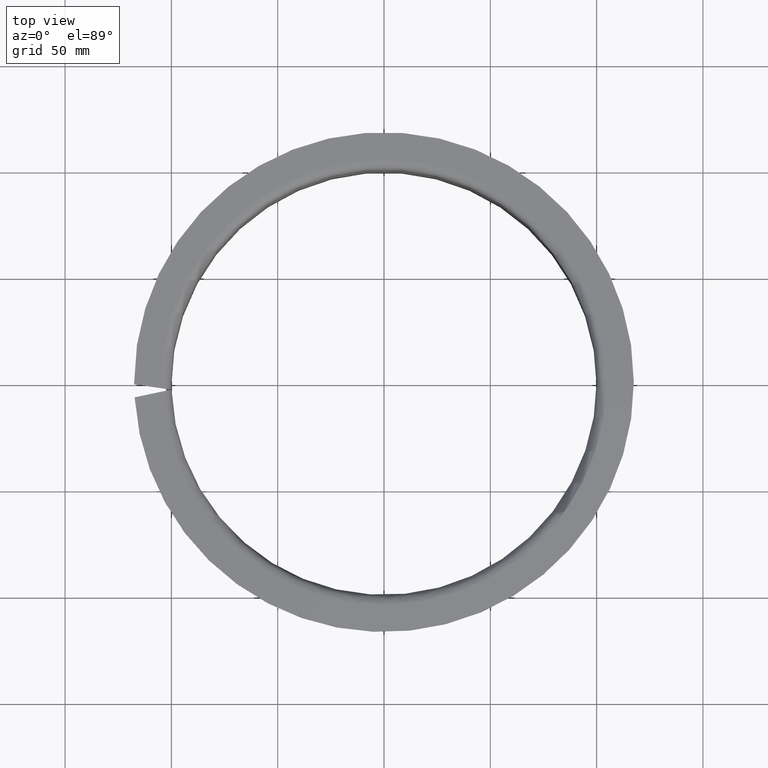
[diagram: clean part render]
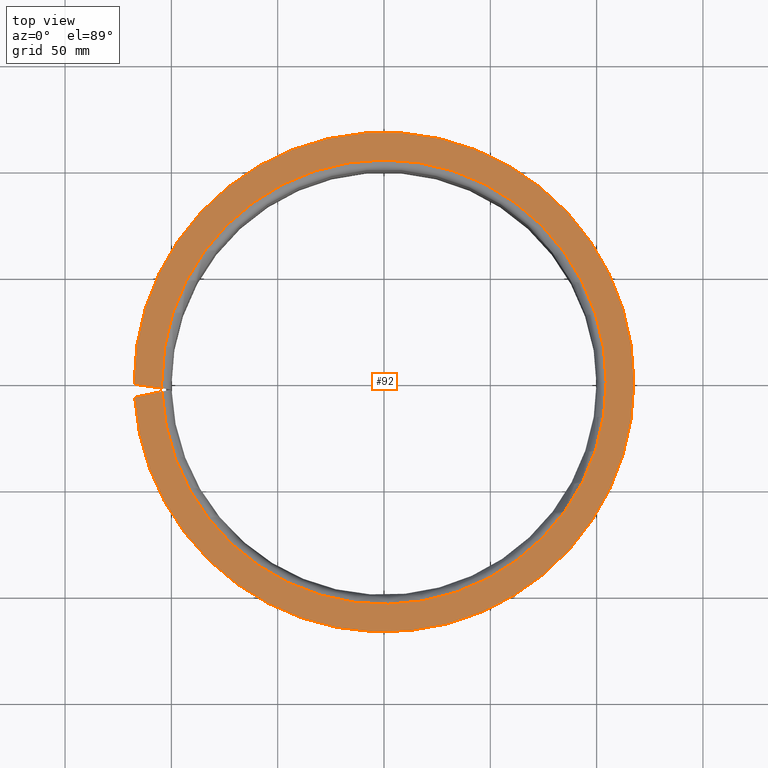
[diagram: same view with one face highlighted and labeled with its STEP entity id]
A machine part, top view. The second image highlights one B-rep face of the part: STEP entity #92.
In plain terms, the highlighted planar face has unit normal (-0, -0, 1).
Its self-contained STEP definition (entity closure, byte-faithful):
#92=ADVANCED_FACE('',(#136),#137,.T.);
#136=FACE_OUTER_BOUND('',#188,.T.);
#137=PLANE('',#189);
#188=EDGE_LOOP('',(#331,#332,#333,#334,#335,#336,#337,#338));
#189=AXIS2_PLACEMENT_3D('',#339,#340,#341);
#331=ORIENTED_EDGE('',*,*,#466,.T.);
#332=ORIENTED_EDGE('',*,*,#440,.T.);
#333=ORIENTED_EDGE('',*,*,#467,.T.);
#334=ORIENTED_EDGE('',*,*,#446,.T.);
#335=ORIENTED_EDGE('',*,*,#461,.T.);
#336=ORIENTED_EDGE('',*,*,#452,.F.);
#337=ORIENTED_EDGE('',*,*,#465,.F.);
#338=ORIENTED_EDGE('',*,*,#450,.F.);
#339=CARTESIAN_POINT('',(-111.0,2.04838146938149E-013,90.0));
#340=DIRECTION('',(-1.16269284789061E-031,-6.12323399573677E-017,1.0));
#341=DIRECTION('',(-1.0,1.89882151931499E-015,0.0));
#440=EDGE_CURVE('',#527,#524,#528,.T.);
#446=EDGE_CURVE('',#533,#537,#539,.T.);
#450=EDGE_CURVE('',#545,#541,#547,.T.);
#452=EDGE_CURVE('',#548,#551,#552,.T.);
#461=EDGE_CURVE('',#537,#551,#562,.T.);
#465=EDGE_CURVE('',#541,#548,#566,.T.);
#466=EDGE_CURVE('',#545,#527,#567,.T.);
#467=EDGE_CURVE('',#524,#533,#568,.T.);
#524=VERTEX_POINT('',#653);
#527=VERTEX_POINT('',#657);
#528=CIRCLE('',#658,117.5);
#533=VERTEX_POINT('',#664);
#537=VERTEX_POINT('',#669);
#539=CIRCLE('',#672,117.5);
#541=VERTEX_POINT('',#674);
#545=VERTEX_POINT('',#678);
#547=CIRCLE('',#701,104.5);
#548=VERTEX_POINT('',#702);
#551=VERTEX_POINT('',#705);
#552=CIRCLE('',#706,104.5);
#562=LINE('',#743,#744);
#566=CIRCLE('',#750,104.5);
#567=LINE('',#751,#752);
#568=CIRCLE('',#753,117.5);
#653=CARTESIAN_POINT('',(117.5,-2.38742875210172E-013,90.0));
#657=CARTESIAN_POINT('',(-117.280666684964,-7.17601713559655,90.0));
#658=AXIS2_PLACEMENT_3D('',#832,#833,#834);
#664=CARTESIAN_POINT('',(-117.5,2.31168603047151E-013,90.0));
#669=CARTESIAN_POINT('',(-117.495550526332,-1.02254902777664,90.0));
#672=AXIS2_PLACEMENT_3D('',#844,#845,#846);
#674=CARTESIAN_POINT('',(104.5,-2.15210549005878E-013,90.0));
#678=CARTESIAN_POINT('',(-104.405661574246,-4.43935031778064,90.0));
#701=AXIS2_PLACEMENT_3D('',#853,#854,#855);
#702=CARTESIAN_POINT('',(-104.5,2.07238266633134E-013,90.0));
#705=CARTESIAN_POINT('',(-104.461008053945,-2.85443450681188,90.0));
#706=AXIS2_PLACEMENT_3D('',#859,#860,#861);
#743=CARTESIAN_POINT('',(-114.26775678283,-1.47618585473605,90.0));
#744=VECTOR('',#872,10.0);
#750=AXIS2_PLACEMENT_3D('',#878,#879,#880);
#751=CARTESIAN_POINT('',(-113.434393618266,-6.35846655729597,90.0));
#752=VECTOR('',#881,10.0);
#753=AXIS2_PLACEMENT_3D('',#882,#883,#884);
#832=CARTESIAN_POINT('',(-7.04575888216064E-030,-3.7105956565641E-015,90.0));
#833=DIRECTION('',(-1.16269284789061E-031,-6.12323399573677E-017,1.0));
#834=DIRECTION('',(-1.0,1.87715863181855E-015,-1.32646929163973E-033));
#844=CARTESIAN_POINT('',(-7.04575888216064E-030,-3.7105956565641E-015,90.0));
#845=DIRECTION('',(-1.16269284789061E-031,-6.12323399573677E-017,1.0));
#846=DIRECTION('',(-1.0,1.87715863181855E-015,-1.32646929163973E-033));
#853=CARTESIAN_POINT('',(-7.04575888216064E-030,-3.7105956565641E-015,90.0));
#854=DIRECTION('',(-1.16269284789061E-031,-6.12323399573677E-017,1.0));
#855=DIRECTION('',(-1.0,1.87715863181855E-015,-1.32646929163971E-033));
#859=CARTESIAN_POINT('',(-7.04575888216064E-030,-3.7105956565641E-015,90.0));
#860=DIRECTION('',(-1.16269284789061E-031,-6.12323399573677E-017,1.0));
#861=DIRECTION('',(-1.0,1.87715863181855E-015,-1.32646929163971E-033));
#872=DIRECTION('',(0.990268068741547,-0.13917310096023,-8.52189463091771E-018));
#878=CARTESIAN_POINT('',(-7.04575888216064E-030,-3.7105956565641E-015,90.0));
#879=DIRECTION('',(-1.16269284789061E-031,-6.12323399573677E-017,1.0));
#880=DIRECTION('',(-1.0,1.87715863181855E-015,-1.32646929163971E-033));
#881=DIRECTION('',(-0.97814760073384,-0.207911690817597,-1.27309193332543E-017));
#882=CARTESIAN_POINT('',(-7.04575888216064E-030,-3.7105956565641E-015,90.0));
#883=DIRECTION('',(-1.16269284789061E-031,-6.12323399573677E-017,1.0));
#884=DIRECTION('',(-1.0,1.87715863181855E-015,-1.32646929163973E-033));